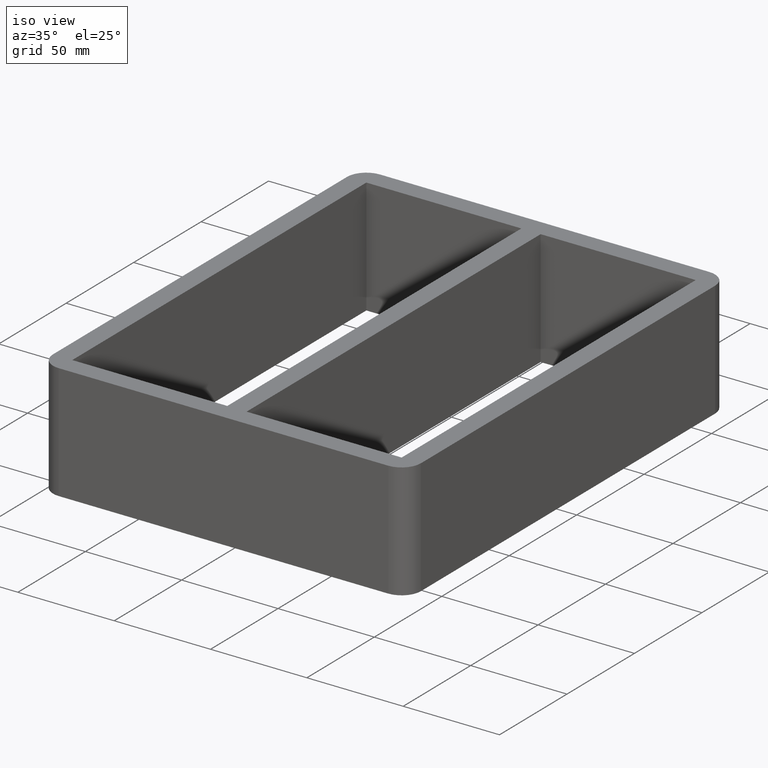
[diagram: clean part render]
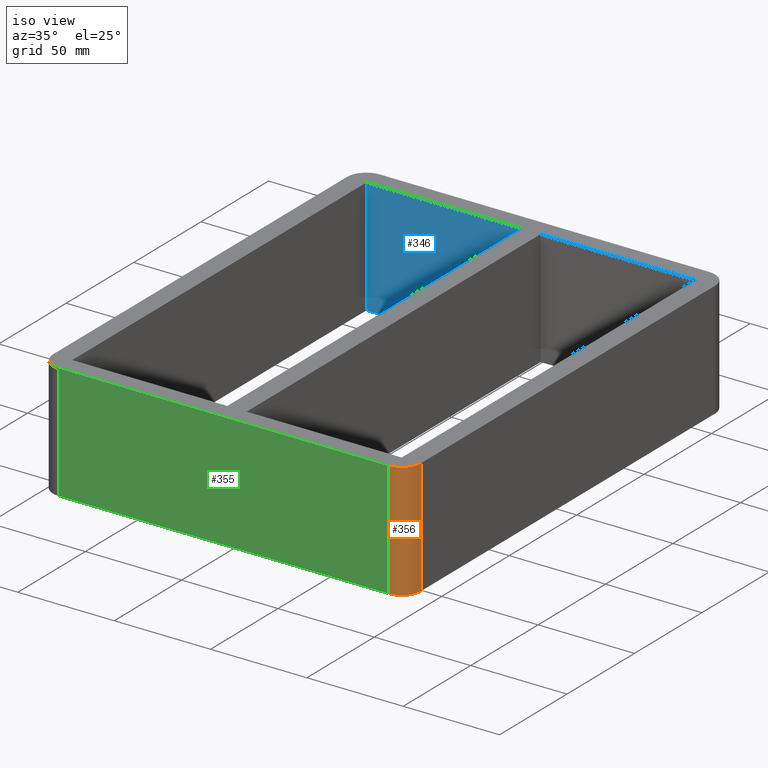
[diagram: same view with three faces highlighted in distinct colors, each labeled with its STEP entity id]
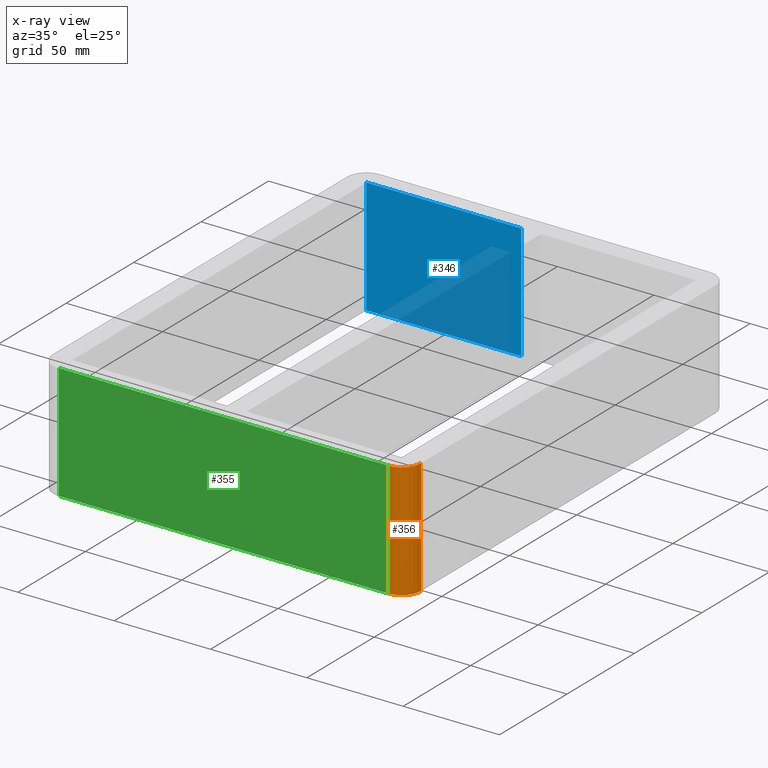
[diagram: x-ray of the same camera — body ghosted, the three highlighted faces saturated]
A machine part, iso view with three faces highlighted in distinct colors.
The next image is the same camera in x-ray (body ghosted, the three faces saturated) — at least one of them is partly hidden behind the body in this view.
Their STEP definitions:

[orange] entity #356 — the highlighted cylindrical surface (edge-blend (fillet) strip) has radius 10 mm, axis along (0, 0, -1).
#21=CIRCLE('',#392,10.);
#26=CIRCLE('',#402,10.);
#30=CYLINDRICAL_SURFACE('',#401,10.);
#46=FACE_OUTER_BOUND('',#66,.T.);
#66=EDGE_LOOP('',(#303,#304,#305,#306));
#107=LINE('',#589,#147);
#109=LINE('',#593,#149);
#147=VECTOR('',#487,10.);
#149=VECTOR('',#491,10.);
#173=VERTEX_POINT('',#564);
#174=VERTEX_POINT('',#566);
#181=VERTEX_POINT('',#588);
#182=VERTEX_POINT('',#592);
#215=EDGE_CURVE('',#174,#173,#21,.T.);
#226=EDGE_CURVE('',#181,#174,#107,.T.);
#228=EDGE_CURVE('',#173,#182,#109,.T.);
#229=EDGE_CURVE('',#182,#181,#26,.T.);
#303=ORIENTED_EDGE('',*,*,#215,.T.);
#304=ORIENTED_EDGE('',*,*,#228,.T.);
#305=ORIENTED_EDGE('',*,*,#229,.T.);
#306=ORIENTED_EDGE('',*,*,#226,.T.);
#356=ADVANCED_FACE('',(#46),#30,.T.);
#392=AXIS2_PLACEMENT_3D('',#567,#463,#464);
#401=AXIS2_PLACEMENT_3D('',#591,#489,#490);
#402=AXIS2_PLACEMENT_3D('',#594,#492,#493);
#463=DIRECTION('center_axis',(0.,0.,1.));
#464=DIRECTION('ref_axis',(0.707106781186547,-0.707106781186547,0.));
#487=DIRECTION('',(0.,0.,-1.));
#489=DIRECTION('center_axis',(0.,0.,-1.));
#490=DIRECTION('ref_axis',(0.707106781186547,-0.707106781186547,0.));
#491=DIRECTION('',(0.,0.,1.));
#492=DIRECTION('center_axis',(0.,0.,-1.));
#493=DIRECTION('ref_axis',(0.707106781186547,-0.707106781186547,0.));
#564=CARTESIAN_POINT('',(95.5,-109.,-60.));
#566=CARTESIAN_POINT('',(85.5,-119.,-60.));
#567=CARTESIAN_POINT('Origin',(85.5,-109.,-60.));
#588=CARTESIAN_POINT('',(85.5,-119.,0.));
#589=CARTESIAN_POINT('',(85.5,-119.,0.));
#591=CARTESIAN_POINT('Origin',(85.5,-109.,0.));
#592=CARTESIAN_POINT('',(95.5,-109.,0.));
#593=CARTESIAN_POINT('',(95.5,-109.,0.));
#594=CARTESIAN_POINT('Origin',(85.5,-109.,0.));

[blue] entity #346 — the highlighted planar face has unit normal (0, 1, 0).
#36=FACE_OUTER_BOUND('',#54,.T.);
#54=EDGE_LOOP('',(#251,#252,#253,#254));
#86=LINE('',#532,#126);
#87=LINE('',#535,#127);
#88=LINE('',#537,#128);
#89=LINE('',#538,#129);
#126=VECTOR('',#432,10.);
#127=VECTOR('',#435,10.);
#128=VECTOR('',#436,10.);
#129=VECTOR('',#437,10.);
#160=VERTEX_POINT('',#526);
#162=VERTEX_POINT('',#530);
#163=VERTEX_POINT('',#534);
#164=VERTEX_POINT('',#536);
#198=EDGE_CURVE('',#162,#160,#86,.T.);
#199=EDGE_CURVE('',#160,#163,#87,.T.);
#200=EDGE_CURVE('',#164,#162,#88,.T.);
#201=EDGE_CURVE('',#164,#163,#89,.T.);
#251=ORIENTED_EDGE('',*,*,#199,.F.);
#252=ORIENTED_EDGE('',*,*,#198,.F.);
#253=ORIENTED_EDGE('',*,*,#200,.F.);
#254=ORIENTED_EDGE('',*,*,#201,.T.);
#332=PLANE('',#384);
#346=ADVANCED_FACE('',(#36),#332,.F.);
#384=AXIS2_PLACEMENT_3D('',#533,#433,#434);
#432=DIRECTION('',(0.,0.,-1.));
#433=DIRECTION('center_axis',(0.,1.,0.));
#434=DIRECTION('ref_axis',(1.,0.,0.));
#435=DIRECTION('',(-1.,0.,0.));
#436=DIRECTION('',(1.,0.,0.));
#437=DIRECTION('',(0.,0.,-1.));
#526=CARTESIAN_POINT('',(-5.00000000000183,108.999999999991,-60.));
#530=CARTESIAN_POINT('',(-5.00000000000183,108.999999999991,0.));
#532=CARTESIAN_POINT('',(-5.00000000000183,108.999999999991,0.));
#533=CARTESIAN_POINT('Origin',(-85.4999999999998,108.999999999991,0.));
#534=CARTESIAN_POINT('',(-85.4999999999998,108.999999999991,-60.));
#535=CARTESIAN_POINT('',(-42.7499999999999,108.999999999991,-60.));
#536=CARTESIAN_POINT('',(-85.4999999999998,108.999999999991,0.));
#537=CARTESIAN_POINT('',(-42.7499999999999,108.999999999991,0.));
#538=CARTESIAN_POINT('',(-85.4999999999998,108.999999999991,0.));

[green] entity #355 — the highlighted planar face has unit normal (0, -1, 0).
#45=FACE_OUTER_BOUND('',#65,.T.);
#65=EDGE_LOOP('',(#299,#300,#301,#302));
#101=LINE('',#569,#141);
#106=LINE('',#585,#146);
#107=LINE('',#589,#147);
#108=LINE('',#590,#148);
#141=VECTOR('',#465,10.);
#146=VECTOR('',#482,10.);
#147=VECTOR('',#487,10.);
#148=VECTOR('',#488,10.);
#174=VERTEX_POINT('',#566);
#175=VERTEX_POINT('',#568);
#180=VERTEX_POINT('',#584);
#181=VERTEX_POINT('',#588);
#216=EDGE_CURVE('',#174,#175,#101,.T.);
#224=EDGE_CURVE('',#175,#180,#106,.T.);
#226=EDGE_CURVE('',#181,#174,#107,.T.);
#227=EDGE_CURVE('',#180,#181,#108,.T.);
#299=ORIENTED_EDGE('',*,*,#224,.F.);
#300=ORIENTED_EDGE('',*,*,#216,.F.);
#301=ORIENTED_EDGE('',*,*,#226,.F.);
#302=ORIENTED_EDGE('',*,*,#227,.F.);
#338=PLANE('',#400);
#355=ADVANCED_FACE('',(#45),#338,.T.);
#400=AXIS2_PLACEMENT_3D('',#587,#485,#486);
#465=DIRECTION('',(-1.,0.,0.));
#482=DIRECTION('',(0.,0.,1.));
#485=DIRECTION('center_axis',(0.,-1.,0.));
#486=DIRECTION('ref_axis',(-1.,0.,0.));
#487=DIRECTION('',(0.,0.,-1.));
#488=DIRECTION('',(1.,0.,0.));
#566=CARTESIAN_POINT('',(85.5,-119.,-60.));
#568=CARTESIAN_POINT('',(-85.5,-119.,-60.));
#569=CARTESIAN_POINT('',(-95.5,-119.,-60.));
#584=CARTESIAN_POINT('',(-85.5,-119.,0.));
#585=CARTESIAN_POINT('',(-85.5,-119.,0.));
#587=CARTESIAN_POINT('Origin',(95.5,-119.,0.));
#588=CARTESIAN_POINT('',(85.5,-119.,0.));
#589=CARTESIAN_POINT('',(85.5,-119.,0.));
#590=CARTESIAN_POINT('',(-95.5,-119.,0.));